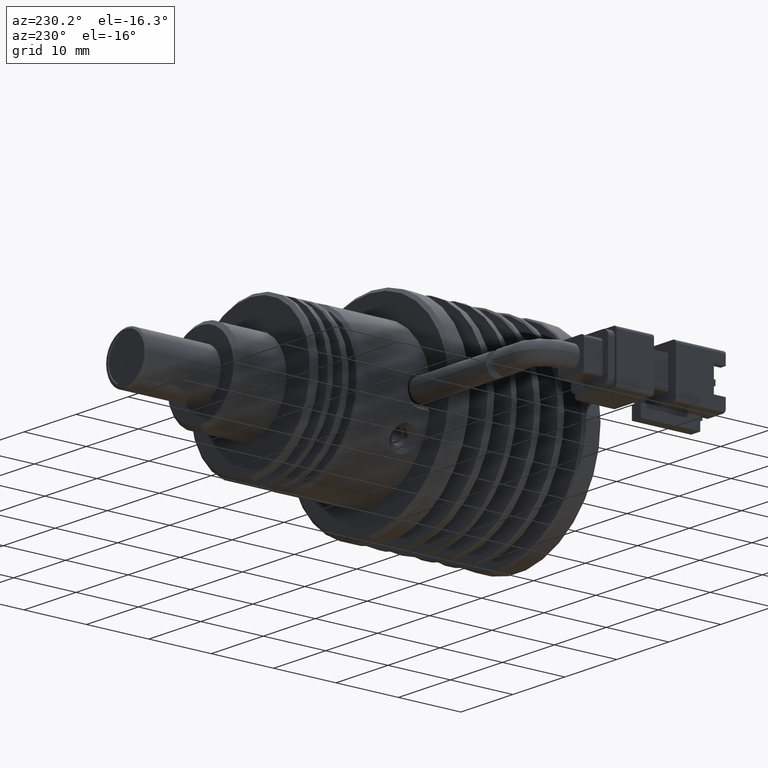
[diagram: clean part render]
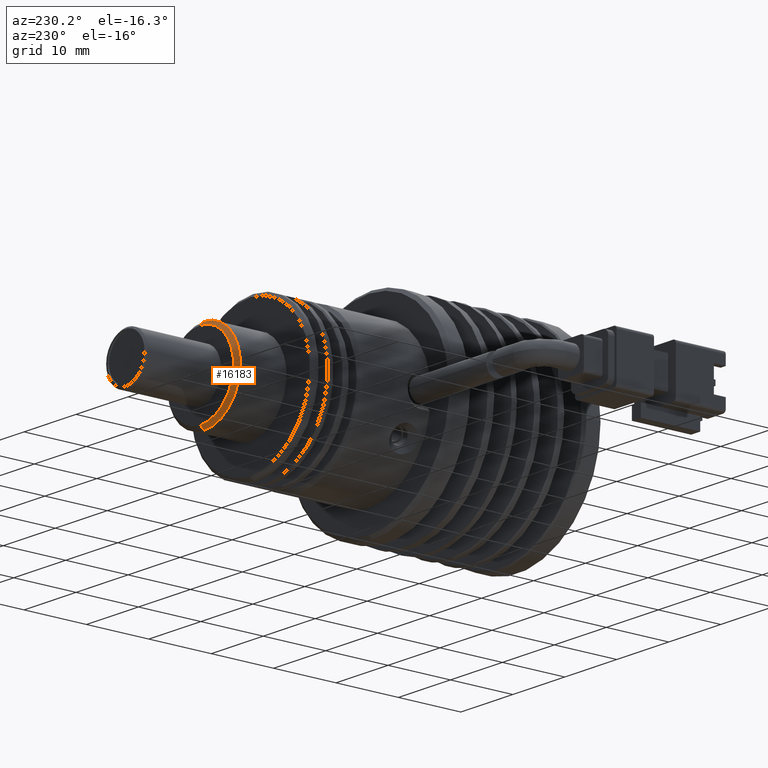
[diagram: same view with one face highlighted and labeled with its STEP entity id]
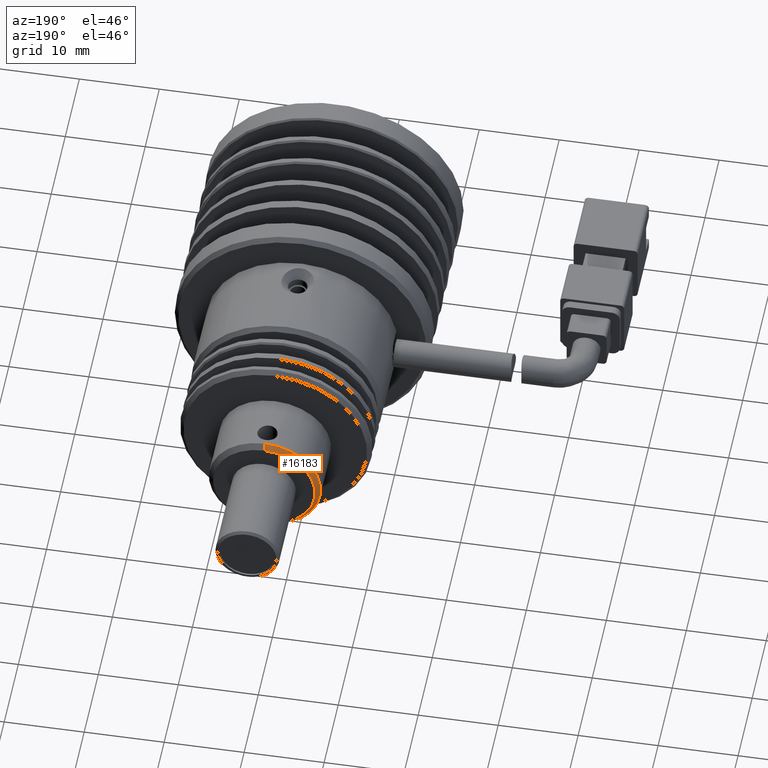
[diagram: same view with one face highlighted and labeled with its STEP entity id]
A machine part, auxiliary view. The second image highlights one B-rep face of the part: STEP entity #16183.
A second angle (auxiliary view) of the same face is appended — the face is thin or edge-on in the first view.
In plain terms, the highlighted conical surface has half-angle 45 deg.
Its self-contained STEP definition (entity closure, byte-faithful):
#670 = DIRECTION ( 'NONE',  ( 0.0000000000000000000, 0.0000000000000000000, -1.000000000000000000 ) ) ;
#755 = CARTESIAN_POINT ( 'NONE',  ( 2.574933787635818900, 10.68506448998739200, -16.17403592165938500 ) ) ;
#930 = EDGE_CURVE ( 'NONE', #14014, #17028, #9096, .T. ) ;
#2692 = AXIS2_PLACEMENT_3D ( 'NONE', #8770, #19517, #10326 ) ;
#5517 = CARTESIAN_POINT ( 'NONE',  ( 2.574933787635818900, 10.68506448998739200, -16.17403592165938500 ) ) ;
#7039 = CIRCLE ( 'NONE', #2692, 6.999999999999999100 ) ;
#7231 = FACE_OUTER_BOUND ( 'NONE', #17263, .T. ) ;
#7763 = VERTEX_POINT ( 'NONE', #5517 ) ;
#8710 = CIRCLE ( 'NONE', #12011, 6.400000000000003000 ) ;
#8770 = CARTESIAN_POINT ( 'NONE',  ( 2.574933787635818900, 10.68506448998739200, -9.174035921659385200 ) ) ;
#9096 = LINE ( 'NONE', #18124, #17253 ) ;
#9577 = VECTOR ( 'NONE', #9991, 1000.000000000000000 ) ;
#9896 = DIRECTION ( 'NONE',  ( 0.0000000000000000000, -1.000000000000000000, 0.0000000000000000000 ) ) ;
#9991 = DIRECTION ( 'NONE',  ( 0.0000000000000000000, -0.7071067811865511300, -0.7071067811865440200 ) ) ;
#10326 = DIRECTION ( 'NONE',  ( 0.0000000000000000000, 0.0000000000000000000, -1.000000000000000000 ) ) ;
#11507 = EDGE_CURVE ( 'NONE', #18061, #7763, #15125, .T. ) ;
#12011 = AXIS2_PLACEMENT_3D ( 'NONE', #19073, #9896, #670 ) ;
#12503 = DIRECTION ( 'NONE',  ( 0.0000000000000000000, -1.000000000000000000, 0.0000000000000000000 ) ) ;
#13038 = CARTESIAN_POINT ( 'NONE',  ( 2.574933787635819400, 10.68506448998739200, -2.174035921659384800 ) ) ;
#14014 = VERTEX_POINT ( 'NONE', #18203 ) ;
#14219 = ORIENTED_EDGE ( 'NONE', *, *, #18236, .F. ) ;
#14458 = ORIENTED_EDGE ( 'NONE', *, *, #11507, .T. ) ;
#15001 = AXIS2_PLACEMENT_3D ( 'NONE', #15538, #12503, #18693 ) ;
#15125 = LINE ( 'NONE', #755, #9577 ) ;
#15538 = CARTESIAN_POINT ( 'NONE',  ( 2.574933787635818900, 10.68506448998739200, -9.174035921659385200 ) ) ;
#15690 = EDGE_CURVE ( 'NONE', #14014, #18061, #8710, .T. ) ;
#15819 = CARTESIAN_POINT ( 'NONE',  ( 2.574933787635818900, 11.28506448998739500, -15.57403592165938700 ) ) ;
#16183 = ADVANCED_FACE ( 'NONE', ( #7231 ), #17062, .T. ) ;
#17028 = VERTEX_POINT ( 'NONE', #13038 ) ;
#17062 = CONICAL_SURFACE ( 'NONE', #15001, 6.999999999999999100, 0.7853981633974432800 ) ;
#17253 = VECTOR ( 'NONE', #18268, 1000.000000000000000 ) ;
#17263 = EDGE_LOOP ( 'NONE', ( #19182, #19328, #14458, #14219 ) ) ;
#18061 = VERTEX_POINT ( 'NONE', #15819 ) ;
#18124 = CARTESIAN_POINT ( 'NONE',  ( 2.574933787635819400, 10.68506448998739200, -2.174035921659384800 ) ) ;
#18203 = CARTESIAN_POINT ( 'NONE',  ( 2.574933787635819400, 11.28506448998739500, -2.774035921659381700 ) ) ;
#18236 = EDGE_CURVE ( 'NONE', #17028, #7763, #7039, .T. ) ;
#18268 = DIRECTION ( 'NONE',  ( 8.659560562354889700E-017, -0.7071067811865511300, 0.7071067811865440200 ) ) ;
#18693 = DIRECTION ( 'NONE',  ( 0.0000000000000000000, 0.0000000000000000000, -1.000000000000000000 ) ) ;
#19073 = CARTESIAN_POINT ( 'NONE',  ( 2.574933787635818900, 11.28506448998739500, -9.174035921659385200 ) ) ;
#19182 = ORIENTED_EDGE ( 'NONE', *, *, #930, .F. ) ;
#19328 = ORIENTED_EDGE ( 'NONE', *, *, #15690, .T. ) ;
#19517 = DIRECTION ( 'NONE',  ( -0.0000000000000000000, -1.000000000000000000, -0.0000000000000000000 ) ) ;